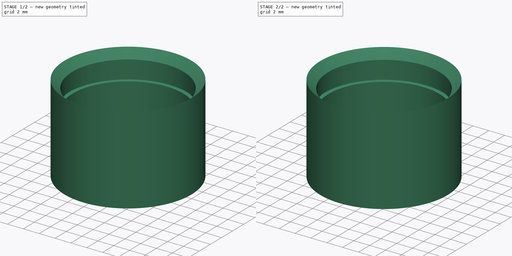
[diagram: build sequence overview — one tinted view per stage of 2, left to right]
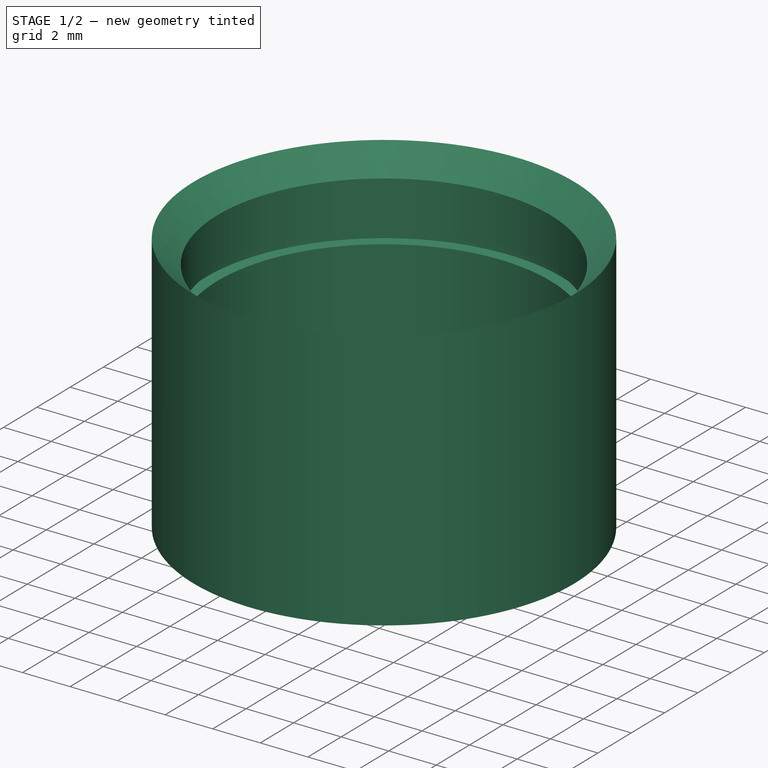
[diagram: stage 1 of 2 — iso view after this stage's code; geometry added in this stage tinted green]
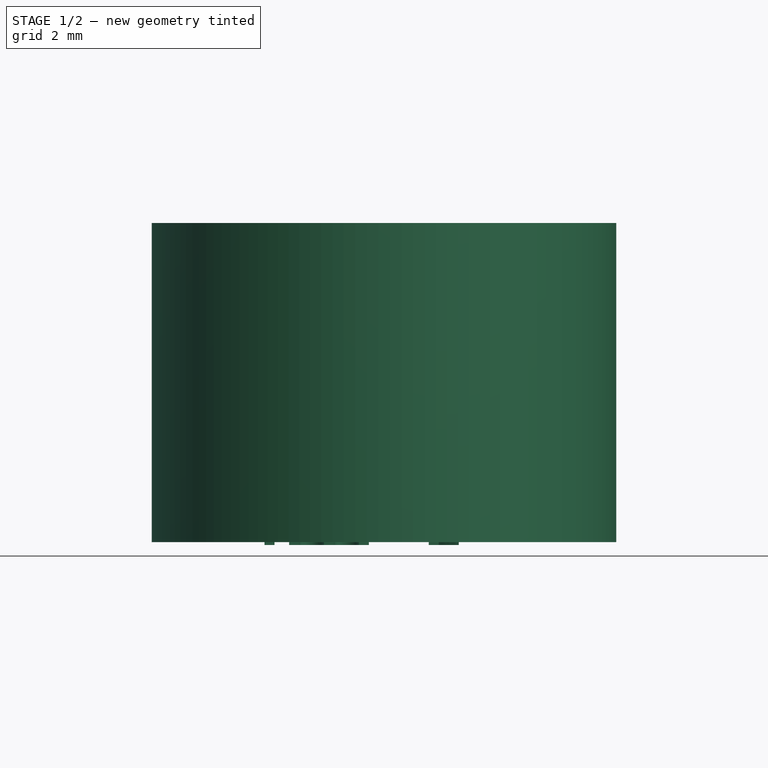
[diagram: stage 1 of 2 — front view after this stage's code; geometry added in this stage tinted green]
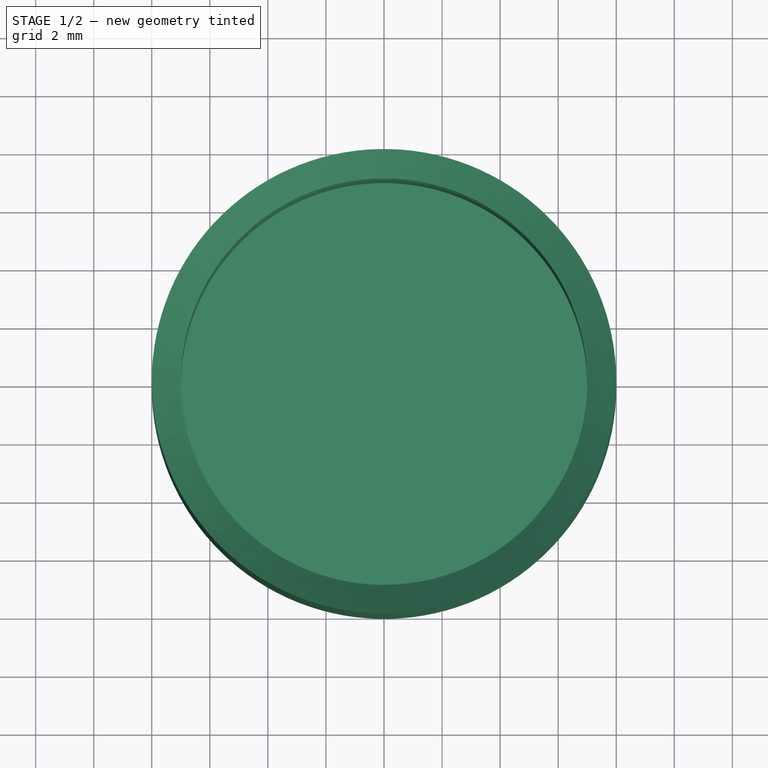
[diagram: stage 1 of 2 — top view after this stage's code; geometry added in this stage tinted green]
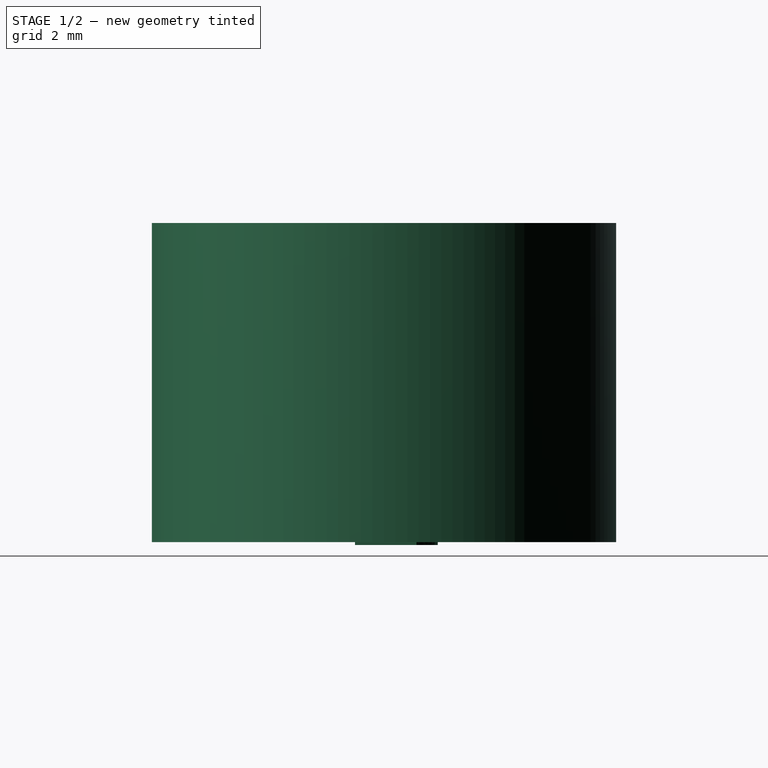
[diagram: stage 1 of 2 — right view after this stage's code; geometry added in this stage tinted green]
FCSTD DOCUMENT  (FreeCAD 0.19R24291 (Git))
Label: 2ml_2
License: All rights reserved
LicenseURL: http://en.wikipedia.org/wiki/All_rights_reserved
objects: Sketcher::SketchObject×1, PartDesign::Revolution×1, PartDesign::Body×1, Part::Part2DObjectPython×1, Part::Mirroring×1, Part::Extrusion×1, Part::Cut×1
note: 8 computed .brp shape members not serialized (recipe doc carries the construction recipe); baked Part::Feature solids carry a one-line shape summary decoded from their .brp

FEATURE [Sketcher::SketchObject] Sketch
  FullyConstrained = true
  MapMode = 5
  Placement = pos=(0,0,0) rot=(1,0,0;1.5708rad)
  Support = -> [XZ_Plane]
  sketch-geometry (10):
    g0: LineSegment StartX=0 StartY=1 StartZ=0 EndX=7 EndY=1 EndZ=0
    g1: LineSegment StartX=7 StartY=1 StartZ=0 EndX=7 EndY=7.496 EndZ=0
    g2: LineSegment StartX=7 StartY=7.496 StartZ=0 EndX=7.5 EndY=7.496 EndZ=0
    g3: LineSegment StartX=7.5 StartY=7.496 StartZ=0 EndX=7.5 EndY=7.996 EndZ=0
    g4: LineSegment StartX=7.5 StartY=7.996 StartZ=0 EndX=7 EndY=7.996 EndZ=0
    g5: LineSegment StartX=7 StartY=7.996 StartZ=0 EndX=7 EndY=9.996 EndZ=0
    g6: LineSegment StartX=7 StartY=9.996 StartZ=0 EndX=8 EndY=10.996 EndZ=0
    g7: LineSegment StartX=8 StartY=10.996 StartZ=0 EndX=8 EndY=0 EndZ=0
    g8: LineSegment StartX=0 StartY=0 StartZ=0 EndX=8 EndY=0 EndZ=0
    g9: LineSegment StartX=0 StartY=0 StartZ=0 EndX=0 EndY=1 EndZ=0
  constraints (29):
    c: Horizontal(g0)
    c: Vertical(g1)
    c: Coincident(g2,g1)
    c: Horizontal(g2)
    c: Coincident(g3,g2)
    c: Vertical(g3)
    c: Coincident(g4,g3)
    c: Horizontal(g4)
    c: Coincident(g5,g4)
    c: Vertical(g5)
    c: Coincident(g6,g5)
    c: Coincident(g7,g6)
    c: Vertical(g7)
    c: Coincident(g0,g1)
    c: Coincident(g8,g-1)
    c: PointOnObject(g8,g-1)
    c: Coincident(g9,g8)
    c: PointOnObject(g9,g-2)
    c: Coincident(g9,g0)
    c: Coincident(g7,g8)
    c: DistanceX(g0,g0) = 7
    c: DistanceX(g8,g8) = 8
    c: DistanceX(g4,g6) = 1
    c: DistanceY(g9,g9) = 1
    c: DistanceY(g1,g1) = 6.496
    c: DistanceY(g1,g4) = 0.5
    c: DistanceY(g5,g5) = 2
    c: Angle(g6,g7) = 0.785398
    c: DistanceX(g4,g4) = 0.5
FEATURE [PartDesign::Revolution] Revolution
  Angle = 360
  Axis = (0,-2e-16,1)
  Base = (0,0,0)
  Placement = pos=(0,0,0) rot=(1,0,0;1.5708rad)
  Profile = -> Sketch
  ReferenceAxis = -> Sketch [V_Axis]
  Reversed = true
FEATURE [PartDesign::Body] Body
  Group = -> [Sketch,Revolution]
  Origin = -> Origin
  Tip = -> Revolution
FEATURE [Part::Part2DObjectPython] ShapeString  # Draft 2D object (typed FeaturePython)
  FontFile = <path>
  Placement = pos=(-3,-1,0.5) rot=(0,0,1;0rad)
  Size = 3
  String = 1 ml
  Tracking = 0
FEATURE [Part::Mirroring] mirror  label="ShapeString (mirrored)"
  Base = (7.1e-15,0.426752,-7.34238e-08)
  Normal = (-1,0,-1.19209e-07)
  Source = -> ShapeString
FEATURE [Part::Extrusion] Extrude
  Base = -> mirror
  Dir = (2.38419e-07,0,-1)
  DirMode = 2
  FaceMakerClass = Part::FaceMakerBullseye
  LengthFwd = 0.6
  LengthRev = 0
  Solid = false
  Symmetric = false
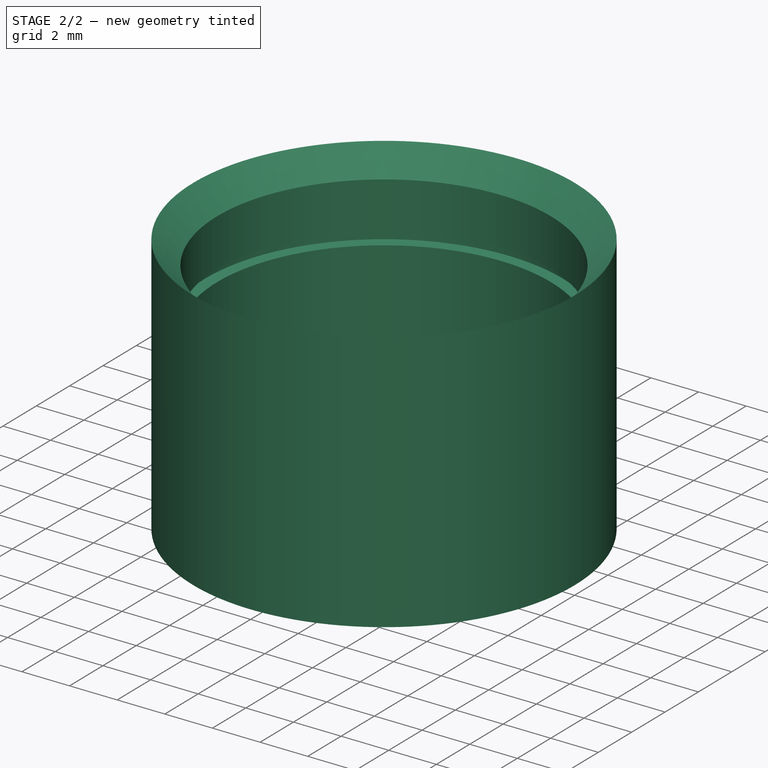
[diagram: stage 2 of 2 — iso view after this stage's code; geometry added in this stage tinted green]
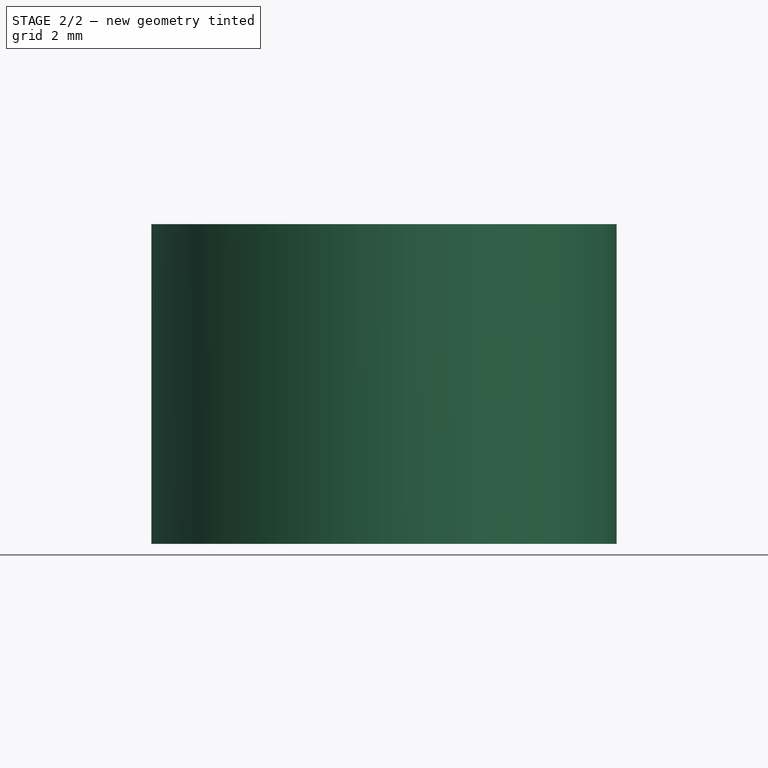
[diagram: stage 2 of 2 — front view after this stage's code; geometry added in this stage tinted green]
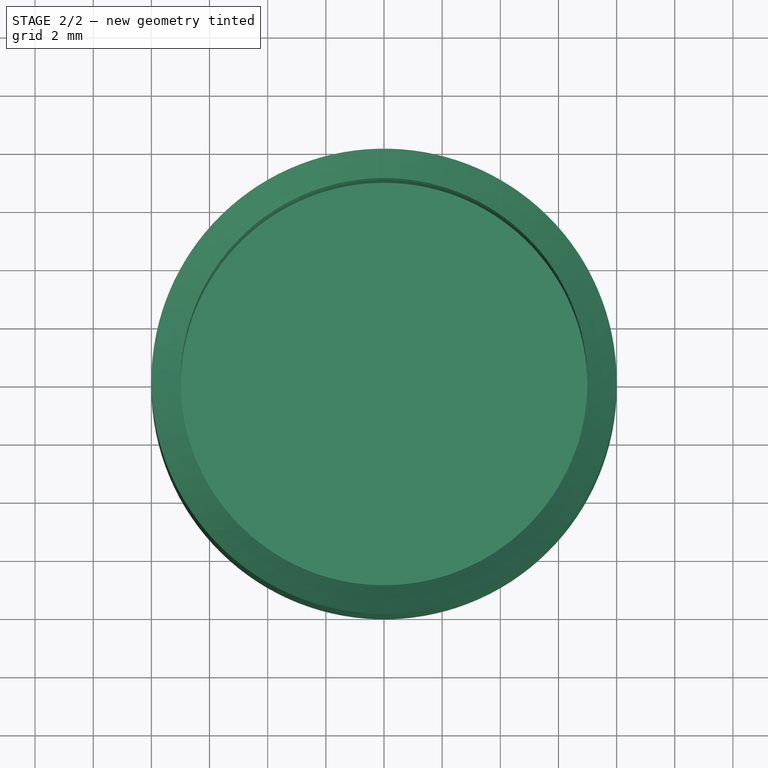
[diagram: stage 2 of 2 — top view after this stage's code; geometry added in this stage tinted green]
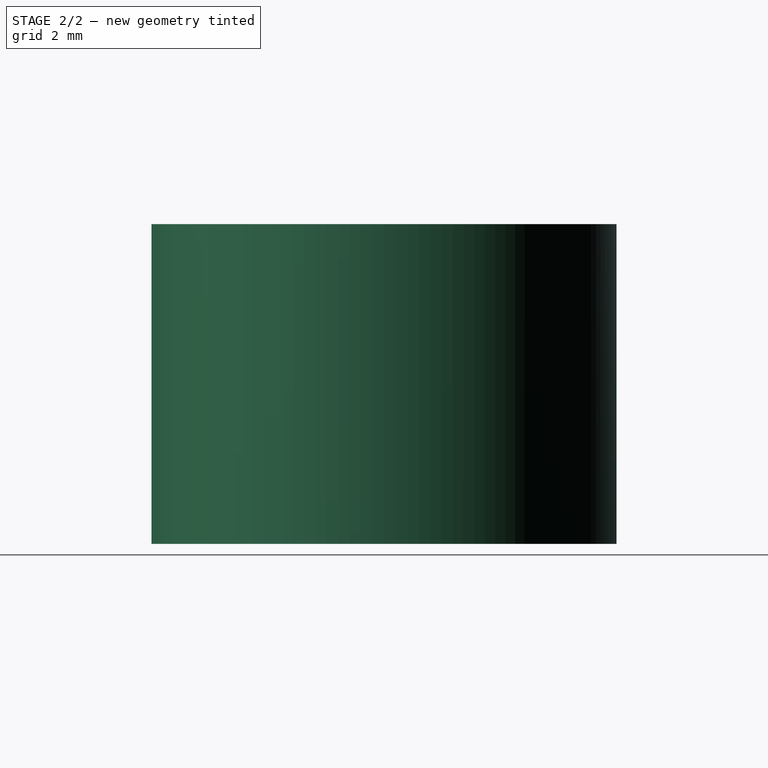
[diagram: stage 2 of 2 — right view after this stage's code; geometry added in this stage tinted green]
FEATURE [Part::Cut] Cut
  Base = -> Revolution
  Tool = -> Extrude
note: 1 file-system path scrubbed to <path> (originals preserved in the JSON sidecar)
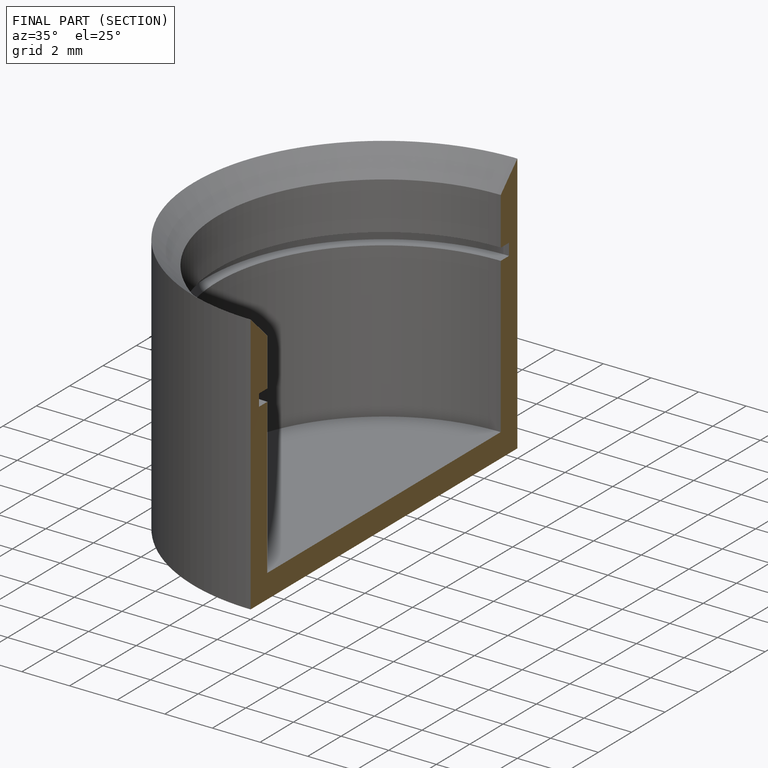
[diagram: finished part — half-section view (interior)]
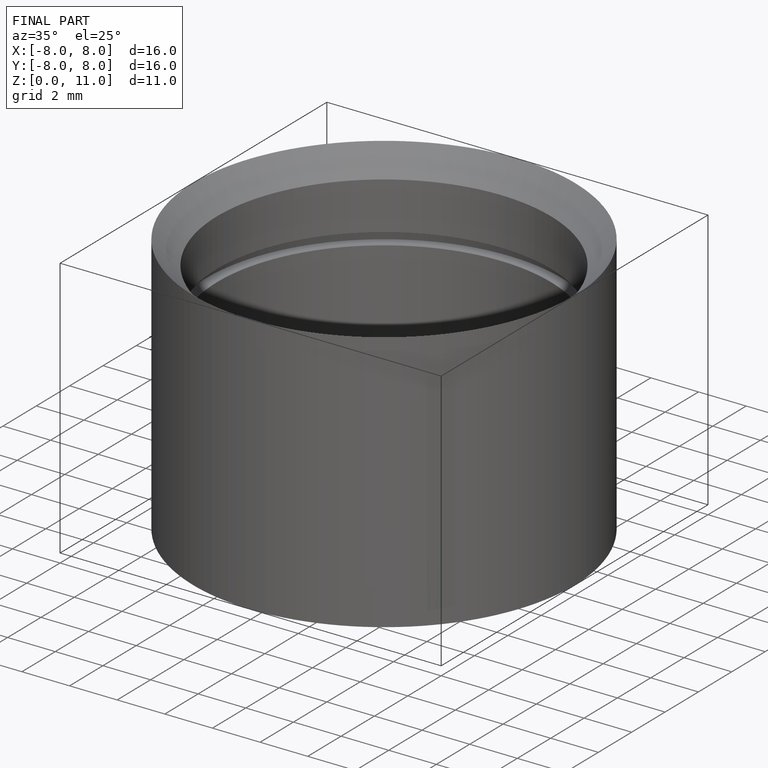
[diagram: finished part — iso view with bounding-box wireframe]
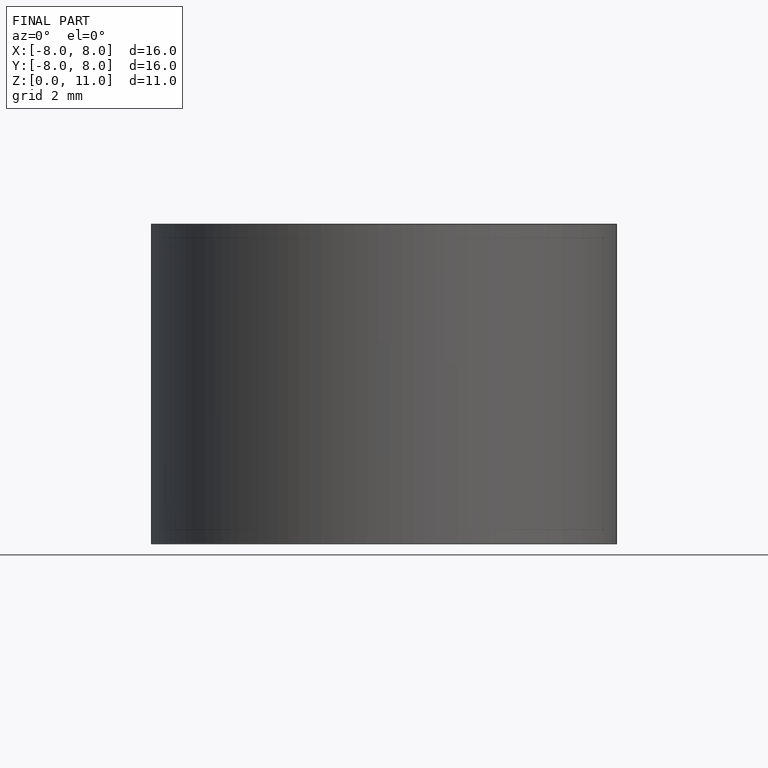
[diagram: finished part — front view with bounding-box wireframe]
